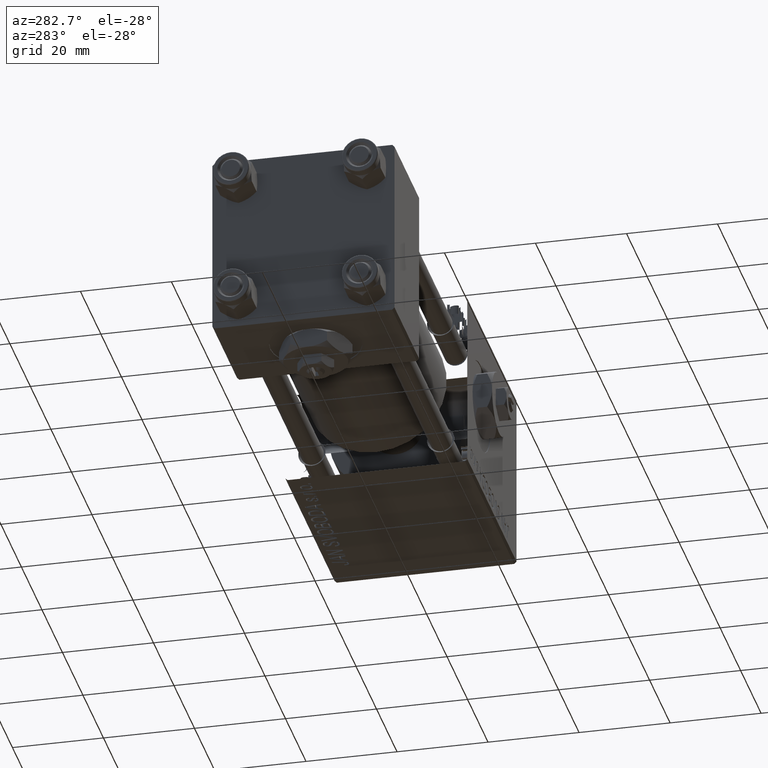
[diagram: clean part render]
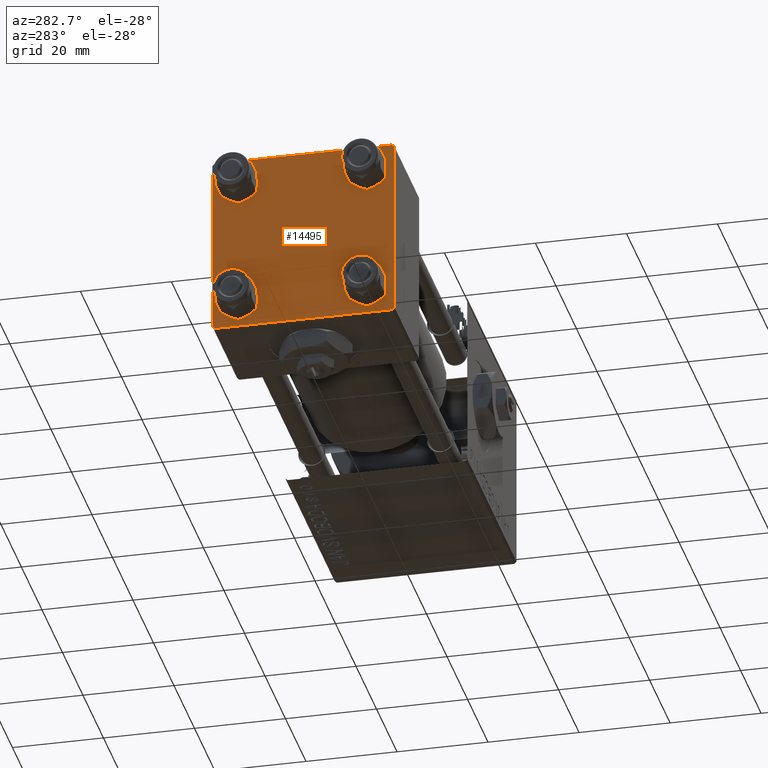
[diagram: same view with one face highlighted and labeled with its STEP entity id]
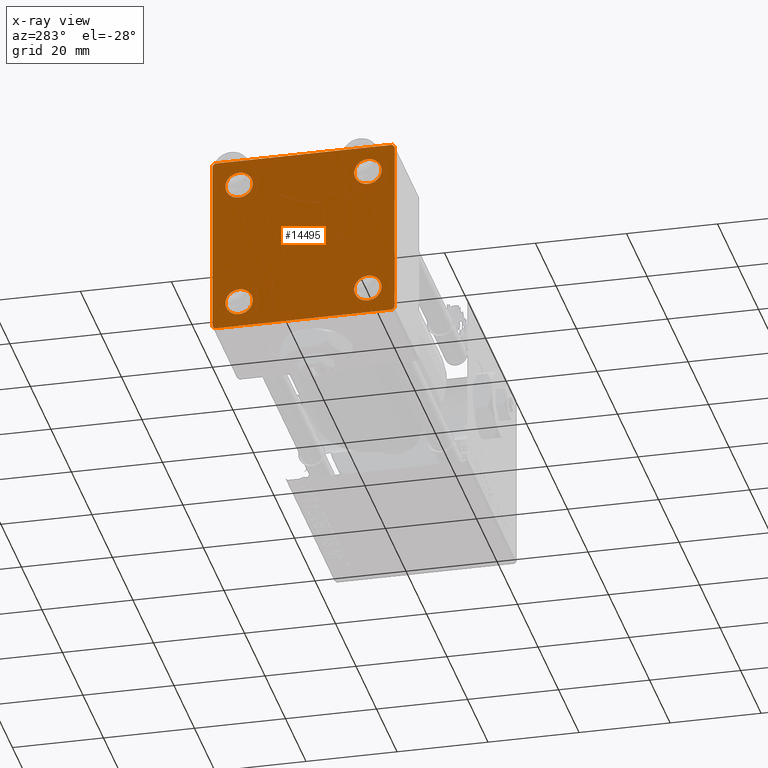
[diagram: x-ray of the same camera — body ghosted, the highlighted face saturated]
A machine part, auxiliary view. The second image highlights one B-rep face of the part: STEP entity #14495.
The next image is the same camera in x-ray: the body ghosted, the highlighted face saturated — about 0% of this face is hidden behind the body in this view.
In plain terms, the highlighted planar face has unit normal (-1, 0, 0).
Its self-contained STEP definition (entity closure, byte-faithful):
#605 = ORIENTED_EDGE ( 'NONE', *, *, #11454, .T. ) ;
#1011 = AXIS2_PLACEMENT_3D ( 'NONE', #3247, #40026, #40286 ) ;
#2409 = ORIENTED_EDGE ( 'NONE', *, *, #31993, .T. ) ;
#2514 = CIRCLE ( 'NONE', #5078, 2.999999999999983569 ) ;
#2560 = EDGE_CURVE ( 'NONE', #41254, #43362, #37435, .T. ) ;
#2677 = VERTEX_POINT ( 'NONE', #29900 ) ;
#3247 = CARTESIAN_POINT ( 'NONE',  ( 0.000000000000000000, -14.14999999999999503, -14.15000000000000391 ) ) ;
#3758 = DIRECTION ( 'NONE',  ( 0.000000000000000000, 0.000000000000000000, 1.000000000000000000 ) ) ;
#4006 = CARTESIAN_POINT ( 'NONE',  ( 0.000000000000000000, 14.14999999999999858, 14.15000000000000036 ) ) ;
#4302 = CARTESIAN_POINT ( 'NONE',  ( 0.000000000000000000, 14.14999999999999858, -11.15000000000001812 ) ) ;
#4417 = ORIENTED_EDGE ( 'NONE', *, *, #46358, .T. ) ;
#4987 = LINE ( 'NONE', #29058, #45834 ) ;
#5078 = AXIS2_PLACEMENT_3D ( 'NONE', #11434, #18877, #7478 ) ;
#5279 = CARTESIAN_POINT ( 'NONE',  ( 0.000000000000000000, -20.00000000000000000, -19.49999999999999645 ) ) ;
#5678 = FACE_BOUND ( 'NONE', #15111, .T. ) ;
#6528 = DIRECTION ( 'NONE',  ( 0.000000000000000000, 0.000000000000000000, -1.000000000000000000 ) ) ;
#7283 = AXIS2_PLACEMENT_3D ( 'NONE', #41337, #49538, #28890 ) ;
#7470 = LINE ( 'NONE', #19121, #36809 ) ;
#7478 = DIRECTION ( 'NONE',  ( 0.000000000000000000, 0.000000000000000000, 1.000000000000000000 ) ) ;
#8261 = EDGE_LOOP ( 'NONE', ( #25898, #10298, #49913, #41765, #41014, #12676, #33424, #9193 ) ) ;
#8563 = CARTESIAN_POINT ( 'NONE',  ( 0.000000000000000000, 20.00000000000000000, 19.49999999999999289 ) ) ;
#8699 = DIRECTION ( 'NONE',  ( 1.000000000000000000, 0.000000000000000000, 0.000000000000000000 ) ) ;
#8718 = AXIS2_PLACEMENT_3D ( 'NONE', #4006, #16174, #40791 ) ;
#8805 = EDGE_CURVE ( 'NONE', #48357, #32068, #23724, .T. ) ;
#9193 = ORIENTED_EDGE ( 'NONE', *, *, #27742, .T. ) ;
#9436 = VERTEX_POINT ( 'NONE', #15925 ) ;
#9451 = EDGE_CURVE ( 'NONE', #32068, #48347, #7470, .T. ) ;
#10093 = LINE ( 'NONE', #10866, #38560 ) ;
#10298 = ORIENTED_EDGE ( 'NONE', *, *, #8805, .T. ) ;
#10347 = EDGE_LOOP ( 'NONE', ( #14272, #605 ) ) ;
#10866 = CARTESIAN_POINT ( 'NONE',  ( 0.000000000000000000, 20.00000000000000000, 20.00000000000000000 ) ) ;
#11189 = EDGE_LOOP ( 'NONE', ( #2409, #14190 ) ) ;
#11434 = CARTESIAN_POINT ( 'NONE',  ( 0.000000000000000000, 14.14999999999999858, 14.15000000000000036 ) ) ;
#11454 = EDGE_CURVE ( 'NONE', #43362, #41254, #47845, .T. ) ;
#11543 = EDGE_CURVE ( 'NONE', #43864, #16392, #10093, .T. ) ;
#11611 = VERTEX_POINT ( 'NONE', #12690 ) ;
#11979 = AXIS2_PLACEMENT_3D ( 'NONE', #40711, #8699, #28790 ) ;
#12415 = VECTOR ( 'NONE', #6528, 1000.000000000000000 ) ;
#12676 = ORIENTED_EDGE ( 'NONE', *, *, #43904, .T. ) ;
#12690 = CARTESIAN_POINT ( 'NONE',  ( 0.000000000000000000, -14.14999999999999503, -17.15000000000000924 ) ) ;
#12873 = CARTESIAN_POINT ( 'NONE',  ( 0.000000000000000000, -20.00000000000000355, 19.99999999999998934 ) ) ;
#12941 = CIRCLE ( 'NONE', #1011, 3.000000000000004441 ) ;
#13085 = EDGE_CURVE ( 'NONE', #49794, #48357, #47263, .T. ) ;
#13116 = CARTESIAN_POINT ( 'NONE',  ( -0.000000000000000000, 19.75000000000013500, 19.74999999999986144 ) ) ;
#13804 = AXIS2_PLACEMENT_3D ( 'NONE', #34632, #25644, #29874 ) ;
#14190 = ORIENTED_EDGE ( 'NONE', *, *, #35314, .T. ) ;
#14272 = ORIENTED_EDGE ( 'NONE', *, *, #2560, .T. ) ;
#14495 = ADVANCED_FACE ( 'NONE', ( #33728, #28990, #5678, #33990, #21049 ), #17602, .T. ) ;
#15111 = EDGE_LOOP ( 'NONE', ( #4417, #22380 ) ) ;
#15270 = DIRECTION ( 'NONE',  ( -0.000000000000000000, -0.7071067811865524577, -0.7071067811865426878 ) ) ;
#15611 = LINE ( 'NONE', #13116, #18761 ) ;
#15831 = CARTESIAN_POINT ( 'NONE',  ( 0.000000000000000000, -19.50000000000000711, -20.00000000000000000 ) ) ;
#15925 = CARTESIAN_POINT ( 'NONE',  ( 0.000000000000000000, -14.14999999999999503, -11.15000000000000036 ) ) ;
#16174 = DIRECTION ( 'NONE',  ( 1.000000000000000000, 0.000000000000000000, 0.000000000000000000 ) ) ;
#16320 = CARTESIAN_POINT ( 'NONE',  ( -0.000000000000000000, 19.74999999999986855, -19.75000000000014211 ) ) ;
#16392 = VERTEX_POINT ( 'NONE', #20811 ) ;
#16455 = EDGE_CURVE ( 'NONE', #44071, #46259, #49119, .T. ) ;
#16990 = CARTESIAN_POINT ( 'NONE',  ( 0.000000000000000000, 19.50000000000000711, -20.00000000000000711 ) ) ;
#17602 = PLANE ( 'NONE',  #20122 ) ;
#18761 = VECTOR ( 'NONE', #40215, 999.9999999999998863 ) ;
#18869 = DIRECTION ( 'NONE',  ( 0.000000000000000000, -1.000000000000000000, 1.734723475976807094E-16 ) ) ;
#18877 = DIRECTION ( 'NONE',  ( 1.000000000000000000, 0.000000000000000000, 0.000000000000000000 ) ) ;
#19026 = LINE ( 'NONE', #19533, #43439 ) ;
#19076 = DIRECTION ( 'NONE',  ( 0.000000000000000000, -1.000000000000000000, -2.602085213965210149E-16 ) ) ;
#19121 = CARTESIAN_POINT ( 'NONE',  ( 0.000000000000000000, 20.00000000000000000, -20.00000000000000711 ) ) ;
#19533 = CARTESIAN_POINT ( 'NONE',  ( 0.000000000000000000, -19.75000000000020961, -19.74999999999979394 ) ) ;
#19729 = AXIS2_PLACEMENT_3D ( 'NONE', #32301, #44222, #28064 ) ;
#20122 = AXIS2_PLACEMENT_3D ( 'NONE', #29761, #42205, #37441 ) ;
#20811 = CARTESIAN_POINT ( 'NONE',  ( 0.000000000000000000, -19.49999999999999289, 19.99999999999998934 ) ) ;
#20941 = AXIS2_PLACEMENT_3D ( 'NONE', #40269, #51916, #3758 ) ;
#21049 = FACE_OUTER_BOUND ( 'NONE', #8261, .T. ) ;
#22128 = ORIENTED_EDGE ( 'NONE', *, *, #30137, .T. ) ;
#22380 = ORIENTED_EDGE ( 'NONE', *, *, #43882, .T. ) ;
#22444 = VECTOR ( 'NONE', #15270, 1000.000000000000000 ) ;
#22663 = VERTEX_POINT ( 'NONE', #4302 ) ;
#23724 = LINE ( 'NONE', #16320, #22444 ) ;
#25644 = DIRECTION ( 'NONE',  ( 1.000000000000000000, 0.000000000000000000, 0.000000000000000000 ) ) ;
#25898 = ORIENTED_EDGE ( 'NONE', *, *, #13085, .T. ) ;
#26934 = ORIENTED_EDGE ( 'NONE', *, *, #38958, .T. ) ;
#27158 = CARTESIAN_POINT ( 'NONE',  ( 0.000000000000000000, -20.00000000000000355, 19.49999999999998224 ) ) ;
#27742 = EDGE_CURVE ( 'NONE', #43864, #49794, #15611, .T. ) ;
#28064 = DIRECTION ( 'NONE',  ( 0.000000000000000000, 0.000000000000000000, 1.000000000000000000 ) ) ;
#28268 = DIRECTION ( 'NONE',  ( -0.000000000000000000, 0.7071067811865500152, 0.7071067811865451302 ) ) ;
#28575 = VECTOR ( 'NONE', #37194, 1000.000000000000000 ) ;
#28790 = DIRECTION ( 'NONE',  ( 0.000000000000000000, 0.000000000000000000, 1.000000000000000000 ) ) ;
#28890 = DIRECTION ( 'NONE',  ( 0.000000000000000000, 0.000000000000000000, 1.000000000000000000 ) ) ;
#28990 = FACE_BOUND ( 'NONE', #11189, .T. ) ;
#29058 = CARTESIAN_POINT ( 'NONE',  ( -0.000000000000000000, -19.74999999999992539, 19.75000000000006395 ) ) ;
#29761 = CARTESIAN_POINT ( 'NONE',  ( 0.000000000000000000, 0.000000000000000000, 0.000000000000000000 ) ) ;
#29874 = DIRECTION ( 'NONE',  ( 0.000000000000000000, 0.000000000000000000, 1.000000000000000000 ) ) ;
#29900 = CARTESIAN_POINT ( 'NONE',  ( 0.000000000000000000, 14.14999999999999858, -17.14999999999998437 ) ) ;
#30137 = EDGE_CURVE ( 'NONE', #41960, #35124, #48405, .T. ) ;
#31415 = CARTESIAN_POINT ( 'NONE',  ( 0.000000000000000000, -14.14999999999999503, 17.14999999999998792 ) ) ;
#31974 = CARTESIAN_POINT ( 'NONE',  ( 0.000000000000000000, 20.00000000000000000, -19.50000000000002132 ) ) ;
#31982 = CARTESIAN_POINT ( 'NONE',  ( 0.000000000000000000, 19.50000000000000000, 20.00000000000000000 ) ) ;
#31993 = EDGE_CURVE ( 'NONE', #9436, #11611, #12941, .T. ) ;
#32068 = VERTEX_POINT ( 'NONE', #16990 ) ;
#32301 = CARTESIAN_POINT ( 'NONE',  ( 0.000000000000000000, -14.14999999999999503, 14.15000000000000391 ) ) ;
#33424 = ORIENTED_EDGE ( 'NONE', *, *, #11543, .F. ) ;
#33728 = FACE_BOUND ( 'NONE', #10347, .T. ) ;
#33752 = EDGE_CURVE ( 'NONE', #48347, #46259, #19026, .T. ) ;
#33990 = FACE_BOUND ( 'NONE', #50132, .T. ) ;
#34632 = CARTESIAN_POINT ( 'NONE',  ( 0.000000000000000000, 14.14999999999999858, -14.15000000000000036 ) ) ;
#35124 = VERTEX_POINT ( 'NONE', #37122 ) ;
#35314 = EDGE_CURVE ( 'NONE', #11611, #9436, #43755, .T. ) ;
#35664 = DIRECTION ( 'NONE',  ( 0.000000000000000000, -0.7071067811865401342, 0.7071067811865549002 ) ) ;
#36809 = VECTOR ( 'NONE', #18869, 1000.000000000000000 ) ;
#37122 = CARTESIAN_POINT ( 'NONE',  ( 0.000000000000000000, 14.14999999999999858, 17.14999999999998437 ) ) ;
#37194 = DIRECTION ( 'NONE',  ( 0.000000000000000000, 8.673617379884036705E-17, -1.000000000000000000 ) ) ;
#37435 = CIRCLE ( 'NONE', #19729, 2.999999999999983569 ) ;
#37441 = DIRECTION ( 'NONE',  ( -0.000000000000000000, 0.000000000000000000, 1.000000000000000000 ) ) ;
#38560 = VECTOR ( 'NONE', #19076, 1000.000000000000000 ) ;
#38958 = EDGE_CURVE ( 'NONE', #35124, #41960, #2514, .T. ) ;
#40026 = DIRECTION ( 'NONE',  ( 1.000000000000000000, 0.000000000000000000, 0.000000000000000000 ) ) ;
#40215 = DIRECTION ( 'NONE',  ( 0.000000000000000000, 0.7071067811865425767, -0.7071067811865525687 ) ) ;
#40269 = CARTESIAN_POINT ( 'NONE',  ( 0.000000000000000000, -14.14999999999999503, -14.15000000000000391 ) ) ;
#40286 = DIRECTION ( 'NONE',  ( 0.000000000000000000, 0.000000000000000000, 1.000000000000000000 ) ) ;
#40639 = CARTESIAN_POINT ( 'NONE',  ( 0.000000000000000000, -14.14999999999999503, 11.15000000000002345 ) ) ;
#40711 = CARTESIAN_POINT ( 'NONE',  ( 0.000000000000000000, 14.14999999999999858, -14.15000000000000036 ) ) ;
#40791 = DIRECTION ( 'NONE',  ( 0.000000000000000000, 0.000000000000000000, 1.000000000000000000 ) ) ;
#41014 = ORIENTED_EDGE ( 'NONE', *, *, #16455, .F. ) ;
#41254 = VERTEX_POINT ( 'NONE', #31415 ) ;
#41337 = CARTESIAN_POINT ( 'NONE',  ( 0.000000000000000000, -14.14999999999999503, 14.15000000000000391 ) ) ;
#41765 = ORIENTED_EDGE ( 'NONE', *, *, #33752, .T. ) ;
#41960 = VERTEX_POINT ( 'NONE', #50896 ) ;
#42205 = DIRECTION ( 'NONE',  ( -1.000000000000000000, 0.000000000000000000, -0.000000000000000000 ) ) ;
#43362 = VERTEX_POINT ( 'NONE', #40639 ) ;
#43439 = VECTOR ( 'NONE', #35664, 1000.000000000000000 ) ;
#43755 = CIRCLE ( 'NONE', #20941, 3.000000000000004441 ) ;
#43864 = VERTEX_POINT ( 'NONE', #31982 ) ;
#43882 = EDGE_CURVE ( 'NONE', #2677, #22663, #50867, .T. ) ;
#43904 = EDGE_CURVE ( 'NONE', #44071, #16392, #4987, .T. ) ;
#44071 = VERTEX_POINT ( 'NONE', #27158 ) ;
#44222 = DIRECTION ( 'NONE',  ( 1.000000000000000000, 0.000000000000000000, 0.000000000000000000 ) ) ;
#45834 = VECTOR ( 'NONE', #28268, 1000.000000000000114 ) ;
#46259 = VERTEX_POINT ( 'NONE', #5279 ) ;
#46358 = EDGE_CURVE ( 'NONE', #22663, #2677, #48442, .T. ) ;
#47263 = LINE ( 'NONE', #50470, #12415 ) ;
#47845 = CIRCLE ( 'NONE', #7283, 2.999999999999983569 ) ;
#48347 = VERTEX_POINT ( 'NONE', #15831 ) ;
#48357 = VERTEX_POINT ( 'NONE', #31974 ) ;
#48405 = CIRCLE ( 'NONE', #8718, 2.999999999999983569 ) ;
#48442 = CIRCLE ( 'NONE', #13804, 2.999999999999983569 ) ;
#49119 = LINE ( 'NONE', #12873, #28575 ) ;
#49538 = DIRECTION ( 'NONE',  ( 1.000000000000000000, 0.000000000000000000, 0.000000000000000000 ) ) ;
#49794 = VERTEX_POINT ( 'NONE', #8563 ) ;
#49913 = ORIENTED_EDGE ( 'NONE', *, *, #9451, .T. ) ;
#50132 = EDGE_LOOP ( 'NONE', ( #26934, #22128 ) ) ;
#50470 = CARTESIAN_POINT ( 'NONE',  ( 0.000000000000000000, 20.00000000000000000, 20.00000000000000000 ) ) ;
#50867 = CIRCLE ( 'NONE', #11979, 2.999999999999983569 ) ;
#50896 = CARTESIAN_POINT ( 'NONE',  ( 0.000000000000000000, 14.14999999999999858, 11.15000000000001990 ) ) ;
#51916 = DIRECTION ( 'NONE',  ( 1.000000000000000000, 0.000000000000000000, 0.000000000000000000 ) ) ;